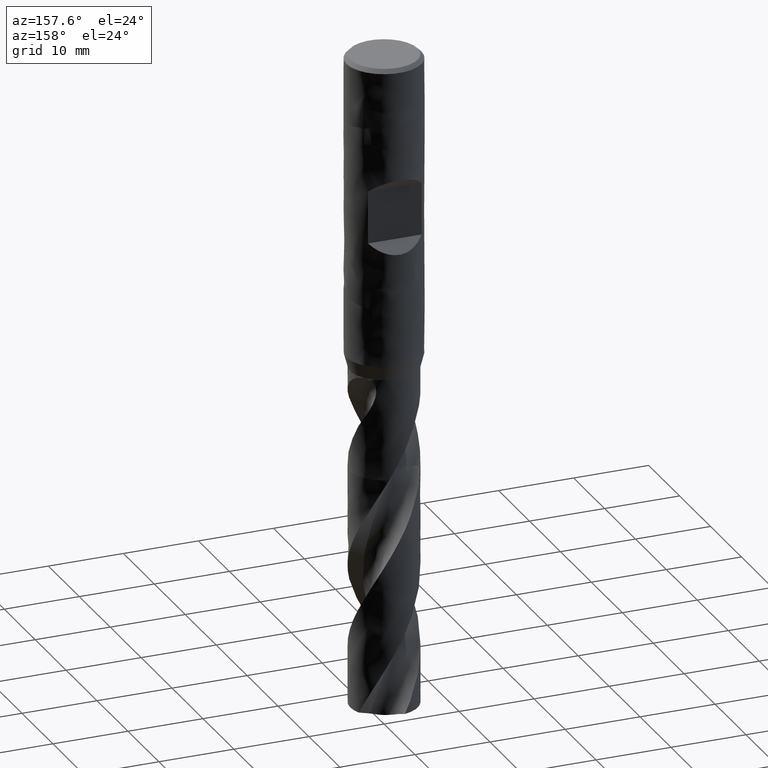
[diagram: clean part render]
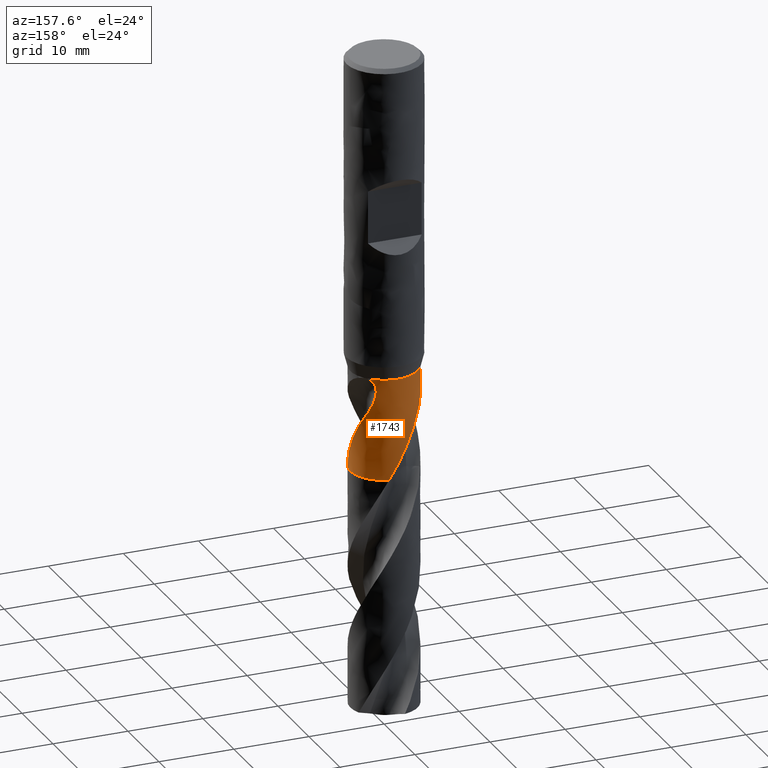
[diagram: same view with one face highlighted and labeled with its STEP entity id]
A machine part, auxiliary view. The second image highlights one B-rep face of the part: STEP entity #1743.
In plain terms, the highlighted face is a freeform B-spline surface patch.
Its self-contained STEP definition (entity closure, byte-faithful):
#119 = VERTEX_POINT('', #120);
#120 = CARTESIAN_POINT('', (3.44069391722672, 2.90028022231629, -42.));
#130 = EDGE_CURVE('', #131, #119, #133, .T.);
#131 = VERTEX_POINT('', #132);
#132 = CARTESIAN_POINT('', (-4.5, 2.8473038080176E-15, -42.));
#133 = CIRCLE('', #134, 4.5);
#134 = AXIS2_PLACEMENT_3D('', #135, #136, #137);
#135 = CARTESIAN_POINT('', (1.57474777179495E-31, 2.57175827820944E-15, -42.));
#136 = DIRECTION('', (3.74939945665464E-33, 6.12323399573677E-17, -1.));
#137 = DIRECTION('', (-1., 6.12323399573677E-17, 0.));
#705 = VERTEX_POINT('', #706);
#706 = CARTESIAN_POINT('', (4.05198058906234, -1.95740984616458, -55.5));
#713 = EDGE_CURVE('', #714, #705, #716, .T.);
#714 = VERTEX_POINT('', #715);
#715 = CARTESIAN_POINT('', (4.45194043634564, 0.655916420918671, -50.7856573626947));
#716 = B_SPLINE_CURVE_WITH_KNOTS('', 3, (#717, #718, #719, #720, #721, #722, #723, #724, #725, #726, #727, #728, #729, #730, #731, #732, #733, #734, #735, #736, #737, #738, #739, #740, #741, #742, #743, #744, #745, #746, #747, #748, #749, #750, #751, #752, #753, #754, #755, #756, #757, #758, #759), .UNSPECIFIED., .F., .U., (4, 3, 3, 3, 3, 3, 3, 3, 3, 3, 3, 3, 3, 3, 4), (0., 0.29539502065758, 0.959313315075301, 1.25466339993672, 1.34222183184912, 1.40060716105512, 2.06667801189992, 2.26381900321986, 2.70763022151414, 3.15144409276816, 3.59519686790093, 4.03891317137523, 4.48260627573187, 5.14828045298989, 5.42449532292791), .UNSPECIFIED.);
#717 = CARTESIAN_POINT('', (4.45194043634564, 0.655916420918671, -50.7856573626947));
#718 = CARTESIAN_POINT('', (4.458782371068, 0.60947775147564, -50.8722136766796));
#719 = CARTESIAN_POINT('', (4.46491948193014, 0.562784455645434, -50.9586924824124));
#720 = CARTESIAN_POINT('', (4.4703356008188, 0.515848442909386, -51.0450813355455));
#721 = CARTESIAN_POINT('', (4.48250865778815, 0.410356896528149, -51.239245542854));
#722 = CARTESIAN_POINT('', (4.49103893057927, 0.303598287924393, -51.432989835455));
#723 = CARTESIAN_POINT('', (4.49573017685656, 0.195985144593489, -51.626312862186));
#724 = CARTESIAN_POINT('', (4.49781712038222, 0.148112460134836, -51.7123143669355));
#725 = CARTESIAN_POINT('', (4.49914532433545, 0.100066112688452, -51.7982412225091));
#726 = CARTESIAN_POINT('', (4.49970089075721, 0.0518834628647062, -51.8840930231405));
#727 = CARTESIAN_POINT('', (4.49986559199552, 0.0375994064848651, -51.9095443415095));
#728 = CARTESIAN_POINT('', (4.49996240674706, 0.0233031983495538, -51.9349893738715));
#729 = CARTESIAN_POINT('', (4.49999100829995, 0.00899584457522997, -51.9604281201026));
#730 = CARTESIAN_POINT('', (4.50001008026189, -0.000544522262498801, -51.9773910731941));
#731 = CARTESIAN_POINT('', (4.49999882216196, -0.0100898749564475, -51.9943512843733));
#732 = CARTESIAN_POINT('', (4.49995714131476, -0.0196399167576835, -52.011308751903));
#733 = CARTESIAN_POINT('', (4.49948163834621, -0.128588595383942, -52.2047627407616));
#734 = CARTESIAN_POINT('', (4.49504186639338, -0.238164718926902, -52.3978967519229));
#735 = CARTESIAN_POINT('', (4.48652822079618, -0.347943276985622, -52.5906937241813));
#736 = CARTESIAN_POINT('', (4.48400838596081, -0.380435096337753, -52.647757002339));
#737 = CARTESIAN_POINT('', (4.48113185975063, -0.412947158005838, -52.7047941378285));
#738 = CARTESIAN_POINT('', (4.47789659128198, -0.445468425127137, -52.7618045388907));
#739 = CARTESIAN_POINT('', (4.47061323315859, -0.518681525482067, -52.8901484991267));
#740 = CARTESIAN_POINT('', (4.46150848244016, -0.591953384753152, -53.0183685788104));
#741 = CARTESIAN_POINT('', (4.45058087248778, -0.6650788655837, -53.1465037765206));
#742 = CARTESIAN_POINT('', (4.43965319721369, -0.738204783534691, -53.2746397401816));
#743 = CARTESIAN_POINT('', (4.42689965127179, -0.81119505040798, -53.4027103661669));
#744 = CARTESIAN_POINT('', (4.41236403463797, -0.883766725914329, -53.5308029378081));
#745 = CARTESIAN_POINT('', (4.39783041900018, -0.956328411088755, -53.6588778760228));
#746 = CARTESIAN_POINT('', (4.38151935972037, -1.02846888724561, -53.7870026870114));
#747 = CARTESIAN_POINT('', (4.36345470242141, -1.10011956619107, -53.915141136748));
#748 = CARTESIAN_POINT('', (4.34539152984109, -1.17176435622891, -54.0432690548957));
#749 = CARTESIAN_POINT('', (4.32557253404574, -1.24293061463942, -54.1714299099022));
#750 = CARTESIAN_POINT('', (4.30401457343478, -1.31356710969063, -54.299577315078));
#751 = CARTESIAN_POINT('', (4.28245773995316, -1.38419991160651, -54.4277180202368));
#752 = CARTESIAN_POINT('', (4.25915525589905, -1.45432258408168, -54.5558591573024));
#753 = CARTESIAN_POINT('', (4.23413862129237, -1.52383402497789, -54.6839843213895));
#754 = CARTESIAN_POINT('', (4.1966060847349, -1.62812226109032, -54.8762109130409));
#755 = CARTESIAN_POINT('', (4.15520351586181, -1.7310594862346, -55.0684583998427));
#756 = CARTESIAN_POINT('', (4.11007651128544, -1.83228575047113, -55.2606889565096));
#757 = CARTESIAN_POINT('', (4.09135151018791, -1.87428858063284, -55.3404531114398));
#758 = CARTESIAN_POINT('', (4.07198119407893, -1.91600714071914, -55.4202317381398));
#759 = CARTESIAN_POINT('', (4.05198058906234, -1.95740984616458, -55.5));
#762 = VERTEX_POINT('', #763);
#763 = CARTESIAN_POINT('', (4.12385104394005, 1.80106983967712, -48.6947415750099));
#772 = EDGE_CURVE('', #762, #119, #773, .T.);
#773 = B_SPLINE_CURVE_WITH_KNOTS('', 3, (#774, #775, #776, #777, #778, #779, #780, #781, #782, #783, #784, #785, #786, #787, #788, #789, #790, #791, #792, #793, #794, #795, #796, #797, #798, #799, #800, #801, #802, #803, #804, #805, #806, #807, #808, #809, #810, #811, #812, #813, #814, #815, #816, #817, #818, #819, #820, #821, #822, #823, #824, #825, #826, #827, #828, #829, #830, #831, #832, #833, #834, #835, #836, #837, #838, #839, #840, #841, #842, #843, #844, #845, #846, #847, #848, #849, #850, #851, #852, #853, #854, #855, #856, #857, #858, #859, #860, #861, #862, #863, #864, #865, #866, #867, #868, #869, #870, #871, #872, #873, #874, #875, #876, #877, #878, #879, #880, #881, #882), .UNSPECIFIED., .F., .U., (4, 3, 3, 3, 3, 3, 3, 3, 3, 3, 3, 3, 3, 3, 3, 3, 3, 3, 3, 3, 3, 3, 3, 3, 3, 3, 3, 3, 3, 3, 3, 3, 3, 3, 3, 3, 4), (0., 0.197102835893202, 0.492773784466257, 0.788351550341603, 1.08381636993702, 1.3791520201464, 1.67435693164855, 1.96942957314415, 2.26436904922048, 2.55916718057986, 2.85382937971017, 3.14836667456291, 3.44278902684676, 3.73711664324877, 4.03137973282777, 4.32561096089565, 4.61985731561041, 4.91418934823698, 5.20869833190772, 5.50351688054435, 5.79884051974259, 5.99604939918181, 6.19356024554242, 6.32531387054738, 6.45722165456509, 6.58930228822605, 6.72156958453462, 6.8540252972224, 6.98665129956758, 7.11940309426151, 7.25220950836681, 7.38498253623147, 7.51763558592297, 7.65010177584364, 7.78234361296874, 7.91435190113676, 7.96430875350277), .UNSPECIFIED.);
#774 = CARTESIAN_POINT('', (4.12385104394005, 1.80106983967712, -48.6947415750099));
#775 = CARTESIAN_POINT('', (4.10944174345662, 1.83406234642616, -48.6397826742657));
#776 = CARTESIAN_POINT('', (4.09454689651569, 1.86708620827442, -48.5849677086219));
#777 = CARTESIAN_POINT('', (4.07917594485883, 1.90008515885102, -48.5302738577882));
#778 = CARTESIAN_POINT('', (4.05611821544434, 1.94958637974763, -48.4482284489343));
#779 = CARTESIAN_POINT('', (4.03198536726886, 1.99903701407781, -48.366447812066));
#780 = CARTESIAN_POINT('', (4.00682741203289, 2.04825147142186, -48.2848482204819));
#781 = CARTESIAN_POINT('', (3.98167738549655, 2.09745041849706, -48.2032743455606));
#782 = CARTESIAN_POINT('', (3.95549993863972, 2.14641890998529, -48.1218716841581));
#783 = CARTESIAN_POINT('', (3.92836864345227, 2.19497603657557, -48.0405485289285));
#784 = CARTESIAN_POINT('', (3.90124771568488, 2.24351460849956, -47.9592564489315));
#785 = CARTESIAN_POINT('', (3.87317059186955, 2.29164746575904, -47.8780346241867));
#786 = CARTESIAN_POINT('', (3.84423492364582, 2.33920025902484, -47.7967856308718));
#787 = CARTESIAN_POINT('', (3.81531190532911, 2.38673226347009, -47.7155721574628));
#788 = CARTESIAN_POINT('', (3.78552813446016, 2.43368940899767, -47.6343220292485));
#789 = CARTESIAN_POINT('', (3.75500652918405, 2.47990442674471, -47.5529336735439));
#790 = CARTESIAN_POINT('', (3.72449843516272, 2.52609898610256, -47.4715813467048));
#791 = CARTESIAN_POINT('', (3.69324978738854, 2.57155741635926, -47.3900814771553));
#792 = CARTESIAN_POINT('', (3.66139905924397, 2.61613396617384, -47.3083419853504));
#793 = CARTESIAN_POINT('', (3.62956260218995, 2.66069054294492, -47.2266391178791));
#794 = CARTESIAN_POINT('', (3.59712066293459, 2.70437172633962, -47.1446868116561));
#795 = CARTESIAN_POINT('', (3.56422679716252, 2.74705066178054, -47.0624024926849));
#796 = CARTESIAN_POINT('', (3.53134777629578, 2.78971033634284, -46.980155308386));
#797 = CARTESIAN_POINT('', (3.4980116015033, 2.83137596284773, -46.8975663306031));
#798 = CARTESIAN_POINT('', (3.46439192168034, 2.87193116439027, -46.8145574760846));
#799 = CARTESIAN_POINT('', (3.43078835351592, 2.91246693054369, -46.7315884021449));
#800 = CARTESIAN_POINT('', (3.39689754157662, 2.95189818134495, -46.6481857348355));
#801 = CARTESIAN_POINT('', (3.3629133691534, 2.99011934069014, -46.5642784385826));
#802 = CARTESIAN_POINT('', (3.32894486692555, 3.02832287615365, -46.4804098322148));
#803 = CARTESIAN_POINT('', (3.29487685640257, 3.06532454623205, -46.3960221168194));
#804 = CARTESIAN_POINT('', (3.26092022794701, 3.10103196806579, -46.311056007049));
#805 = CARTESIAN_POINT('', (3.22697799335723, 3.13672425389042, -46.2261259135393));
#806 = CARTESIAN_POINT('', (3.19313949085429, 3.17113136009745, -46.1406002333629));
#807 = CARTESIAN_POINT('', (3.15963654930072, 3.20416867164059, -46.0544304921937));
#808 = CARTESIAN_POINT('', (3.12614668220065, 3.23719309044137, -45.9682943785874));
#809 = CARTESIAN_POINT('', (3.09298461423683, 3.26885619546727, -45.8814921255085));
#810 = CARTESIAN_POINT('', (3.06040656195672, 3.29907739762686, -45.7939880515898));
#811 = CARTESIAN_POINT('', (3.0278389922724, 3.32928887555113, -45.7065121337385));
#812 = CARTESIAN_POINT('', (2.99584479393179, 3.35806902033853, -45.6183082485744));
#813 = CARTESIAN_POINT('', (2.96470315573492, 3.3853412233297, -45.5293597156362));
#814 = CARTESIAN_POINT('', (2.93356834486537, 3.41260744730797, -45.4404306833019));
#815 = CARTESIAN_POINT('', (2.903273499296, 3.43837717554736, -45.3507241197067));
#816 = CARTESIAN_POINT('', (2.87412922420207, 3.46256858453196, -45.2602443807016));
#817 = CARTESIAN_POINT('', (2.84498810472187, 3.48675737417735, -45.169774438444));
#818 = CARTESIAN_POINT('', (2.81698432614287, 3.50937905730848, -45.0784883752135));
#819 = CARTESIAN_POINT('', (2.79047197841208, 3.53033513107425, -44.9864174719309));
#820 = CARTESIAN_POINT('', (2.76395826766171, 3.5512922822074, -44.8943418352145));
#821 = CARTESIAN_POINT('', (2.7389195502569, 3.57059707896348, -44.801426298283));
#822 = CARTESIAN_POINT('', (2.71575755654577, 3.58812777003057, -44.7077443958891));
#823 = CARTESIAN_POINT('', (2.6925888185837, 3.6056635656401, -44.6140352154351));
#824 = CARTESIAN_POINT('', (2.67127879425492, 3.62143916826633, -44.5194861438142));
#825 = CARTESIAN_POINT('', (2.6522980202464, 3.63528750056953, -44.4242303883018));
#826 = CARTESIAN_POINT('', (2.63330583508514, 3.64914415842547, -44.3289173654737));
#827 = CARTESIAN_POINT('', (2.61662603702717, 3.66108654722025, -44.2327967112601));
#828 = CARTESIAN_POINT('', (2.60281781508818, 3.67087720054207, -44.1360973912047));
#829 = CARTESIAN_POINT('', (2.58899507901893, 3.68067814503812, -44.0392964283358));
#830 = CARTESIAN_POINT('', (2.5780290796607, 3.68833947824353, -43.9417752063882));
#831 = CARTESIAN_POINT('', (2.57059467444784, 3.69351364146668, -43.8439206683643));
#832 = CARTESIAN_POINT('', (2.56314753242476, 3.69869666919655, -43.7458984834817));
#833 = CARTESIAN_POINT('', (2.55922938610776, 3.70139773973256, -43.6473366686923));
#834 = CARTESIAN_POINT('', (2.55966336060007, 3.70109760481963, -43.5488968697536));
#835 = CARTESIAN_POINT('', (2.55995315664744, 3.70089718310594, -43.4831615209219));
#836 = CARTESIAN_POINT('', (2.56218671127093, 3.69935516549302, -43.4173831179439));
#837 = CARTESIAN_POINT('', (2.56663922142728, 3.69626339795085, -43.3518707041325));
#838 = CARTESIAN_POINT('', (2.57109854928265, 3.69316689628348, -43.2862579774854));
#839 = CARTESIAN_POINT('', (2.5777933340623, 3.68851032435602, -43.2207952890536));
#840 = CARTESIAN_POINT('', (2.58701017784377, 3.68203453809613, -43.1559291360261));
#841 = CARTESIAN_POINT('', (2.59315846084538, 3.67771473323367, -43.1126588500697));
#842 = CARTESIAN_POINT('', (2.6004366305666, 3.67257918365187, -43.0696025814014));
#843 = CARTESIAN_POINT('', (2.60892488334374, 3.66653937017912, -43.0269381938789));
#844 = CARTESIAN_POINT('', (2.61742306784509, 3.66049248979127, -42.9842238866684));
#845 = CARTESIAN_POINT('', (2.62714582980874, 3.65353111877221, -42.9418477784331));
#846 = CARTESIAN_POINT('', (2.63816015507598, 3.64556045021469, -42.90003331892));
#847 = CARTESIAN_POINT('', (2.64918891332158, 3.63757933703309, -42.8581640664736));
#848 = CARTESIAN_POINT('', (2.66153106225893, 3.62857306834648, -42.8167925497633));
#849 = CARTESIAN_POINT('', (2.67522692407668, 3.61844730577844, -42.7761938025171));
#850 = CARTESIAN_POINT('', (2.68894214153923, 3.60830723300005, -42.735537679186));
#851 = CARTESIAN_POINT('', (2.70404257664039, 3.59702402337951, -42.6955796070558));
#852 = CARTESIAN_POINT('', (2.72052347810708, 3.58451558862117, -42.6566467471936));
#853 = CARTESIAN_POINT('', (2.73702785681922, 3.57198933544474, -42.617658426997));
#854 = CARTESIAN_POINT('', (2.75495605165357, 3.5582041566712, -42.5796103987791));
#855 = CARTESIAN_POINT('', (2.77423693388748, 3.54310731345448, -42.5428718148075));
#856 = CARTESIAN_POINT('', (2.7935426042922, 3.5279910612126, -42.5060859984383));
#857 = CARTESIAN_POINT('', (2.8142573850786, 3.51151762363255, -42.4705167813898));
#858 = CARTESIAN_POINT('', (2.83622548821922, 3.49368358326504, -42.4365498014514));
#859 = CARTESIAN_POINT('', (2.8582144275401, 3.47583262776938, -42.402550604707));
#860 = CARTESIAN_POINT('', (2.88152563888081, 3.45656333933347, -42.370056901602));
#861 = CARTESIAN_POINT('', (2.90591271940851, 3.4359381931548, -42.3394302940152));
#862 = CARTESIAN_POINT('', (2.930309833759, 3.41530456096398, -42.3087910854141));
#863 = CARTESIAN_POINT('', (2.9558616272231, 3.39324672055347, -42.2799235903449));
#864 = CARTESIAN_POINT('', (2.98224538445104, 3.3698979905808, -42.2531194631827));
#865 = CARTESIAN_POINT('', (3.00862250905906, 3.34655513025172, -42.2263220743174));
#866 = CARTESIAN_POINT('', (3.03591594956172, 3.32184581133799, -42.2014996300607));
#867 = CARTESIAN_POINT('', (3.06376054121671, 3.29596288602944, -42.178839206985));
#868 = CARTESIAN_POINT('', (3.09157997156225, 3.27010334940265, -42.1561992606297));
#869 = CARTESIAN_POINT('', (3.12003544760285, 3.24299176277464, -42.1356447896155));
#870 = CARTESIAN_POINT('', (3.14876129791478, 3.21485649582591, -42.1172481652552));
#871 = CARTESIAN_POINT('', (3.17744668397943, 3.18676086120788, -42.0988774550298));
#872 = CARTESIAN_POINT('', (3.20648317988398, 3.1575644916313, -42.0826031261672));
#873 = CARTESIAN_POINT('', (3.23553971957338, 3.12750423230138, -42.0683975863059));
#874 = CARTESIAN_POINT('', (3.26454704734, 3.09749488485486, -42.0542161058108));
#875 = CARTESIAN_POINT('', (3.29364739903772, 3.06654939313026, -42.0420578285831));
#876 = CARTESIAN_POINT('', (3.32256399262148, 3.03489184567345, -42.0318240271443));
#877 = CARTESIAN_POINT('', (3.35142951734217, 3.00329020780889, -42.0216082993628));
#878 = CARTESIAN_POINT('', (3.38017450223144, 2.97091121233099, -42.0132859133681));
#879 = CARTESIAN_POINT('', (3.40858108249613, 2.93795422089112, -42.0067173488274));
#880 = CARTESIAN_POINT('', (3.41933119035829, 2.92548206797831, -42.0042315593851));
#881 = CARTESIAN_POINT('', (3.43003872500741, 2.91292081296467, -42.0019952226215));
#882 = CARTESIAN_POINT('', (3.44069391722673, 2.90028022231629, -42.));
#1045 = EDGE_CURVE('', #762, #714, #1046, .T.);
#1046 = B_SPLINE_CURVE_WITH_KNOTS('', 3, (#1047, #1048, #1049, #1050, #1051, #1052, #1053, #1054, #1055, #1056, #1057, #1058, #1059, #1060, #1061, #1062, #1063, #1064, #1065, #1066, #1067, #1068, #1069, #1070, #1071, #1072, #1073, #1074, #1075, #1076, #1077, #1078, #1079, #1080), .UNSPECIFIED., .F., .U., (4, 3, 3, 3, 3, 3, 3, 3, 3, 3, 3, 4), (0., 0.295439691773837, 0.590954220280572, 0.787983847565851, 0.87555585662526, 1.07256570003713, 1.26954016174877, 1.46650024332262, 1.66346796548772, 1.7948097205204, 2.23788693835516, 2.40915931169227), .UNSPECIFIED.);
#1047 = CARTESIAN_POINT('', (4.12385104394005, 1.80106983967712, -48.6947415750099));
#1048 = CARTESIAN_POINT('', (4.14544930899904, 1.75161699451328, -48.7771200990048));
#1049 = CARTESIAN_POINT('', (4.16589055044593, 1.70238668048791, -48.8599450351426));
#1050 = CARTESIAN_POINT('', (4.18521003168944, 1.65348631401867, -48.9432144891314));
#1051 = CARTESIAN_POINT('', (4.20453440667911, 1.60457356077891, -49.0265050357968));
#1052 = CARTESIAN_POINT('', (4.22273952415076, 1.55598233144152, -49.1102537071801));
#1053 = CARTESIAN_POINT('', (4.23985833506833, 1.50784657659627, -49.1944742479068));
#1054 = CARTESIAN_POINT('', (4.25127203087441, 1.47575282511751, -49.2506269583438));
#1055 = CARTESIAN_POINT('', (4.26220384567453, 1.44385913063201, -49.3069949328159));
#1056 = CARTESIAN_POINT('', (4.27266327852273, 1.41221404481172, -49.3635864254033));
#1057 = CARTESIAN_POINT('', (4.27731208977391, 1.3981490344865, -49.388739143651));
#1058 = CARTESIAN_POINT('', (4.28186755264805, 1.38413335881177, -49.4139369652219));
#1059 = CARTESIAN_POINT('', (4.28633103197485, 1.37017016619449, -49.4391798216565));
#1060 = CARTESIAN_POINT('', (4.29637247527037, 1.33875731612278, -49.4959684148024));
#1061 = CARTESIAN_POINT('', (4.30594987720016, 1.30760659614793, -49.552986506774));
#1062 = CARTESIAN_POINT('', (4.31509639359055, 1.2766922550176, -49.6101982782461));
#1063 = CARTESIAN_POINT('', (4.32424126732544, 1.24578346590403, -49.6673997748522));
#1064 = CARTESIAN_POINT('', (4.33295615235127, 1.21510915431608, -49.7247985164359));
#1065 = CARTESIAN_POINT('', (4.34127774492715, 1.18461282341544, -49.7823460452505));
#1066 = CARTESIAN_POINT('', (4.34959872998443, 1.1541187189021, -49.8398893728027));
#1067 = CARTESIAN_POINT('', (4.35752708512729, 1.12380108626086, -49.8975841916973));
#1068 = CARTESIAN_POINT('', (4.36510037109096, 1.09357155701014, -49.9553698702792));
#1069 = CARTESIAN_POINT('', (4.37267395084199, 1.06334085507777, -50.0131577905171));
#1070 = CARTESIAN_POINT('', (4.37989292459683, 1.03319704375896, -50.0710384762165));
#1071 = CARTESIAN_POINT('', (4.38679241902818, 1.0030215712321, -50.1289395643701));
#1072 = CARTESIAN_POINT('', (4.39139313074627, 0.982900002697661, -50.1675490911128));
#1073 = CARTESIAN_POINT('', (4.39585183258811, 0.962763280368107, -50.2061679054679));
#1074 = CARTESIAN_POINT('', (4.40017741408164, 0.942570275685479, -50.2447719406265));
#1075 = CARTESIAN_POINT('', (4.41476962516635, 0.874449819001488, -50.3750014208936));
#1076 = CARTESIAN_POINT('', (4.42783841378979, 0.805713948395505, -50.5050903682347));
#1077 = CARTESIAN_POINT('', (4.43932713893653, 0.736460829577258, -50.6350328997717));
#1078 = CARTESIAN_POINT('', (4.4437681283246, 0.709690899769174, -50.6852624418875));
#1079 = CARTESIAN_POINT('', (4.44797342838624, 0.682841929386687, -50.7354713260767));
#1080 = CARTESIAN_POINT('', (4.45194043634564, 0.655916420918671, -50.7856573626947));
#1100 = VERTEX_POINT('', #1101);
#1101 = CARTESIAN_POINT('', (-4.5, 2.92789061816025E-15, -43.3160824851502));
#1142 = EDGE_CURVE('', #131, #1100, #1143, .T.);
#1143 = LINE('', #1144, #1145);
#1144 = CARTESIAN_POINT('', (-4.5, 2.8473038080176E-15, -42.));
#1145 = VECTOR('', #1146, 1.31608248515022);
#1146 = DIRECTION('', (-8.88178419700125E-16, 8.05868101426554E-17, -1.31608248515022));
#1410 = EDGE_CURVE('', #1411, #1100, #1413, .T.);
#1411 = VERTEX_POINT('', #1412);
#1412 = CARTESIAN_POINT('', (-4.29539669869406, 1.34147948208244, -44.6514118858238));
#1413 = B_SPLINE_CURVE_WITH_KNOTS('', 3, (#1414, #1415, #1416, #1417, #1418, #1419, #1420, #1421, #1422, #1423, #1424, #1425, #1426, #1427, #1428, #1429), .UNSPECIFIED., .F., .U., (4, 3, 3, 3, 3, 4), (0., 0.447380350143242, 0.894897015395336, 1.3424632426885, 1.78998473153669, 1.91006643244903), .UNSPECIFIED.);
#1414 = CARTESIAN_POINT('', (-4.29539669869406, 1.34147948208244, -44.6514118858238));
#1415 = CARTESIAN_POINT('', (-4.32408506816386, 1.24961976364665, -44.5374927605302));
#1416 = CARTESIAN_POINT('', (-4.35057512189034, 1.15443300244147, -44.4256059738919));
#1417 = CARTESIAN_POINT('', (-4.37430159509922, 1.05616549608117, -44.3159731814237));
#1418 = CARTESIAN_POINT('', (-4.39803529767519, 0.957868047981543, -44.2063069842562));
#1419 = CARTESIAN_POINT('', (-4.41902552932334, 0.856394272690701, -44.0987818685925));
#1420 = CARTESIAN_POINT('', (-4.43671063472103, 0.752062991878544, -43.9936411408358));
#1421 = CARTESIAN_POINT('', (-4.45439769872717, 0.647720156477193, -43.8884887688445));
#1422 = CARTESIAN_POINT('', (-4.46879832793187, 0.540402390431017, -43.7856030435393));
#1423 = CARTESIAN_POINT('', (-4.47936178043881, 0.430485818516779, -43.6852833467799));
#1424 = CARTESIAN_POINT('', (-4.48992417702953, 0.320580233795508, -43.5849736779156));
#1425 = CARTESIAN_POINT('', (-4.4966627626958, 0.207934492413165, -43.4871052190702));
#1426 = CARTESIAN_POINT('', (-4.49903864304257, 0.0930123024641156, -43.392025900119));
#1427 = CARTESIAN_POINT('', (-4.49967615377739, 0.0621756781107885, -43.3665136361814));
#1428 = CARTESIAN_POINT('', (-4.5, 0.0311683335366803, -43.3411965134454));
#1429 = CARTESIAN_POINT('', (-4.5, 3.64097038700397E-15, -43.3160824851502));
#1551 = VERTEX_POINT('', #1552);
#1552 = CARTESIAN_POINT('', (1.11183896799399, 4.3604832426292, -55.5));
#1559 = EDGE_CURVE('', #1411, #1551, #1560, .T.);
#1560 = B_SPLINE_CURVE_WITH_KNOTS('', 3, (#1561, #1562, #1563, #1564, #1565, #1566, #1567, #1568, #1569, #1570, #1571, #1572, #1573, #1574, #1575, #1576, #1577, #1578, #1579, #1580, #1581, #1582, #1583, #1584, #1585, #1586, #1587, #1588, #1589, #1590, #1591, #1592, #1593, #1594, #1595, #1596, #1597, #1598, #1599, #1600, #1601, #1602, #1603, #1604, #1605, #1606, #1607, #1608, #1609, #1610, #1611, #1612, #1613, #1614, #1615, #1616, #1617, #1618, #1619, #1620, #1621, #1622, #1623, #1624, #1625, #1626, #1627, #1628, #1629, #1630, #1631, #1632, #1633, #1634, #1635, #1636, #1637, #1638, #1639, #1640, #1641, #1642, #1643, #1644, #1645, #1646, #1647, #1648, #1649, #1650, #1651, #1652, #1653, #1654, #1655, #1656, #1657, #1658, #1659, #1660, #1661, #1662, #1663, #1664, #1665, #1666, #1667, #1668, #1669), .UNSPECIFIED., .F., .U., (4, 3, 3, 3, 3, 3, 3, 3, 3, 3, 3, 3, 3, 3, 3, 3, 3, 3, 3, 3, 3, 3, 3, 3, 3, 3, 3, 3, 3, 3, 3, 3, 3, 3, 3, 3, 4), (0., 0.442316919703613, 0.884663411420732, 1.17981335267309, 1.47498446681071, 1.77017817358961, 2.21274049600664, 2.50800136069737, 2.80329240951882, 3.09861383894044, 3.39397508685775, 3.68937601381761, 3.9848130476933, 4.64955487547151, 4.94504723879927, 5.24058594565356, 5.53618187669096, 5.8318077239107, 6.02885477657869, 6.22586025083169, 6.42284567200577, 6.61983339189687, 6.81684562731948, 7.26003274004493, 7.70307422773445, 8.14605008551359, 8.58901752051185, 9.03195736241555, 9.47484739424819, 9.67180070334426, 10.114654115417, 10.5575013692184, 10.6158817940916, 11.2821115342085, 11.5779058537086, 12.2439721220954, 12.8428846972362), .UNSPECIFIED.);
#1561 = CARTESIAN_POINT('', (-4.29539669869406, 1.34147948208244, -44.6514118858238));
#1562 = CARTESIAN_POINT('', (-4.26703302288412, 1.43229953640613, -44.7640416796425));
#1563 = CARTESIAN_POINT('', (-4.23598446240087, 1.5215878332831, -44.877272118116));
#1564 = CARTESIAN_POINT('', (-4.20245100871911, 1.60916298718193, -44.9910453607182));
#1565 = CARTESIAN_POINT('', (-4.16891531308887, 1.696743996099, -45.1048262098661));
#1566 = CARTESIAN_POINT('', (-4.13287982148164, 1.78264919245886, -45.2191994039562));
#1567 = CARTESIAN_POINT('', (-4.09455913170755, 1.86670445356265, -45.3341228369591));
#1568 = CARTESIAN_POINT('', (-4.06899015004418, 1.92278923289577, -45.4108040023678));
#1569 = CARTESIAN_POINT('', (-4.0423978278864, 1.97806503375079, -45.4877467244849));
#1570 = CARTESIAN_POINT('', (-4.01484450553339, 2.03249196711535, -45.5649335094706));
#1571 = CARTESIAN_POINT('', (-3.98728920661439, 2.08692280485207, -45.6421258315298));
#1572 = CARTESIAN_POINT('', (-3.95876787544659, 2.1405142816223, -45.7195757961143));
#1573 = CARTESIAN_POINT('', (-3.92934472401294, 2.19322822338937, -45.7972686766326));
#1574 = CARTESIAN_POINT('', (-3.89991932050694, 2.24594619992515, -45.8749675038282));
#1575 = CARTESIAN_POINT('', (-3.86958690097149, 2.29779550232364, -45.9529224163218));
#1576 = CARTESIAN_POINT('', (-3.83841444450393, 2.34873892806835, -46.0311221126145));
#1577 = CARTESIAN_POINT('', (-3.79167986170992, 2.42511467826802, -46.1483611946438));
#1578 = CARTESIAN_POINT('', (-3.74304534327969, 2.49947247374776, -46.2661897243262));
#1579 = CARTESIAN_POINT('', (-3.69273093785549, 2.57171892332837, -46.3845590190456));
#1580 = CARTESIAN_POINT('', (-3.65916306707333, 2.61991902553659, -46.4635305413406));
#1581 = CARTESIAN_POINT('', (-3.62484074910354, 2.66718962705235, -46.5427578155728));
#1582 = CARTESIAN_POINT('', (-3.58983048937862, 2.71350641376203, -46.6222285027361));
#1583 = CARTESIAN_POINT('', (-3.5548166506008, 2.75982793537603, -46.7017073140835));
#1584 = CARTESIAN_POINT('', (-3.51910943720358, 2.80520239251453, -46.7814413729313));
#1585 = CARTESIAN_POINT('', (-3.4827780396774, 2.84960648622592, -46.8614216188627));
#1586 = CARTESIAN_POINT('', (-3.44644290424699, 2.89401514838943, -46.9414100934481));
#1587 = CARTESIAN_POINT('', (-3.40947978399968, 2.93745790307386, -47.0216579124377));
#1588 = CARTESIAN_POINT('', (-3.37195357508556, 2.97992098678266, -47.1021513753703));
#1589 = CARTESIAN_POINT('', (-3.33442230647364, 3.02238979583324, -47.1826556913203));
#1590 = CARTESIAN_POINT('', (-3.29632196275392, 3.06388530587751, -47.2634160985385));
#1591 = CARTESIAN_POINT('', (-3.25771626373282, 3.10439764608382, -47.3444191296328));
#1592 = CARTESIAN_POINT('', (-3.21910537839433, 3.14491542874707, -47.4254330427326));
#1593 = CARTESIAN_POINT('', (-3.17998379092743, 3.1844551921768, -47.5067002908115));
#1594 = CARTESIAN_POINT('', (-3.14041748197054, 3.22300760764444, -47.588210803946));
#1595 = CARTESIAN_POINT('', (-3.10084633681559, 3.26156473538172, -47.6697312801272));
#1596 = CARTESIAN_POINT('', (-3.0608254662314, 3.29913898250182, -47.7515056159124));
#1597 = CARTESIAN_POINT('', (-3.0204240592769, 3.33572158642495, -47.8335272903121));
#1598 = CARTESIAN_POINT('', (-2.92951973102994, 3.41803349796065, -48.0180784179842));
#1599 = CARTESIAN_POINT('', (-2.83665040461999, 3.49535386325523, -48.2039630996826));
#1600 = CARTESIAN_POINT('', (-2.74256138533987, 3.56768230755524, -48.3910828981963));
#1601 = CARTESIAN_POINT('', (-2.70073674679831, 3.59983389189809, -48.4742617643029));
#1602 = CARTESIAN_POINT('', (-2.65866354916189, 3.6310062301845, -48.5577004100712));
#1603 = CARTESIAN_POINT('', (-2.61640235821721, 3.66120727355276, -48.6413881466344));
#1604 = CARTESIAN_POINT('', (-2.57413453924125, 3.69141305349979, -48.7250890083586));
#1605 = CARTESIAN_POINT('', (-2.53167048049944, 3.72065321466811, -48.8090451057766));
#1606 = CARTESIAN_POINT('', (-2.48906203530184, 3.7489425421603, -48.8932414611873));
#1607 = CARTESIAN_POINT('', (-2.44644533997181, 3.77723734722148, -48.9774541192601));
#1608 = CARTESIAN_POINT('', (-2.40367937469677, 3.80458385219289, -49.0619155363511));
#1609 = CARTESIAN_POINT('', (-2.36083431713313, 3.83098699123958, -49.1466251921457));
#1610 = CARTESIAN_POINT('', (-2.31798492337802, 3.85739280245135, -49.2313434210945));
#1611 = CARTESIAN_POINT('', (-2.27505168108672, 3.88285761557549, -49.3163182382829));
#1612 = CARTESIAN_POINT('', (-2.23213053143173, 3.90737677869064, -49.4015655331349));
#1613 = CARTESIAN_POINT('', (-2.20352178116115, 3.92371983147565, -49.4583864381961));
#1614 = CARTESIAN_POINT('', (-2.17492043288559, 3.93964196099857, -49.5153337450176));
#1615 = CARTESIAN_POINT('', (-2.14633623603313, 3.95515369636771, -49.5723995051062));
#1616 = CARTESIAN_POINT('', (-2.1177580706619, 3.97066215864364, -49.6294532238887));
#1617 = CARTESIAN_POINT('', (-2.08919598984206, 3.98576117404228, -49.6866277017202));
#1618 = CARTESIAN_POINT('', (-2.06063699857144, 4.00047186718248, -49.7439018694576));
#1619 = CARTESIAN_POINT('', (-2.03208091430484, 4.01518106292931, -49.801170207289));
#1620 = CARTESIAN_POINT('', (-2.00352695701577, 4.02950270930625, -49.8585403052117));
#1621 = CARTESIAN_POINT('', (-1.97493742309401, 4.04346660365371, -49.9159782814201));
#1622 = CARTESIAN_POINT('', (-1.94634755554731, 4.05743066095252, -49.9734169278997));
#1623 = CARTESIAN_POINT('', (-1.91772120518948, 4.07103759030878, -50.0309252053642));
#1624 = CARTESIAN_POINT('', (-1.88899537123002, 4.08432325942397, -50.0884568574479));
#1625 = CARTESIAN_POINT('', (-1.86026596228076, 4.09761058196831, -50.1459956694654));
#1626 = CARTESIAN_POINT('', (-1.8314343988039, 4.11057791684066, -50.203558338987));
#1627 = CARTESIAN_POINT('', (-1.80241900273627, 4.12326154137416, -50.2610898888278));
#1628 = CARTESIAN_POINT('', (-1.73714767793651, 4.1517938755403, -50.3905094723876));
#1629 = CARTESIAN_POINT('', (-1.67099240158538, 4.1788649174949, -50.5198167982899));
#1630 = CARTESIAN_POINT('', (-1.60408906283004, 4.20439035753212, -50.6490308212022));
#1631 = CARTESIAN_POINT('', (-1.53720770756843, 4.22990741026967, -50.7782023862086));
#1632 = CARTESIAN_POINT('', (-1.46957002223301, 4.25388450157392, -50.9072981764263));
#1633 = CARTESIAN_POINT('', (-1.40124605299674, 4.27627285132288, -51.0362947883646));
#1634 = CARTESIAN_POINT('', (-1.33293220492542, 4.29865788457569, -51.1652722914015));
#1635 = CARTESIAN_POINT('', (-1.26391377986457, 4.3194606774622, -51.2941631108594));
#1636 = CARTESIAN_POINT('', (-1.1942644690847, 4.33863254699933, -51.4229438577435));
#1637 = CARTESIAN_POINT('', (-1.1246164826228, 4.35780405200089, -51.5517221559794));
#1638 = CARTESIAN_POINT('', (-1.05432818150173, 4.37534706707061, -51.6804087188353));
#1639 = CARTESIAN_POINT('', (-0.983489254019049, 4.39121268981919, -51.8089869716103));
#1640 = CARTESIAN_POINT('', (-0.912654739197594, 4.40707732427474, -51.9375572150564));
#1641 = CARTESIAN_POINT('', (-0.841259141652817, 4.42126688629208, -52.0660373692451));
#1642 = CARTESIAN_POINT('', (-0.769409567440224, 4.43373532335112, -52.1944184401978));
#1643 = CARTESIAN_POINT('', (-0.69756807295327, 4.4462023582926, -52.3227850742684));
#1644 = CARTESIAN_POINT('', (-0.625262735416336, 4.45695035750219, -52.4510715957801));
#1645 = CARTESIAN_POINT('', (-0.552604986505963, 4.46594085595508, -52.5792692653916));
#1646 = CARTESIAN_POINT('', (-0.520294067201334, 4.46993893288942, -52.6362788014696));
#1647 = CARTESIAN_POINT('', (-0.48791200694902, 4.47358976100607, -52.6932734800191));
#1648 = CARTESIAN_POINT('', (-0.455468494529894, 4.47689048899911, -52.7502523447494));
#1649 = CARTESIAN_POINT('', (-0.382518614985472, 4.48431224119383, -52.8783704493785));
#1650 = CARTESIAN_POINT('', (-0.309242223894213, 4.48996441690554, -53.0064178839288));
#1651 = CARTESIAN_POINT('', (-0.235782286221555, 4.49381872281295, -53.1344014686108));
#1652 = CARTESIAN_POINT('', (-0.162323370074785, 4.49767297512279, -53.2623832735669));
#1653 = CARTESIAN_POINT('', (-0.0886702108230407, 4.49972863895086, -53.390320478117));
#1654 = CARTESIAN_POINT('', (-0.0150484078853025, 4.49997483830967, -53.5182664805565));
#1655 = CARTESIAN_POINT('', (-0.00534286698255091, 4.50000729469965, -53.5351335649047));
#1656 = CARTESIAN_POINT('', (0.00436206600224842, 4.50000834886925, -53.5520010887193));
#1657 = CARTESIAN_POINT('', (0.0140660132762335, 4.4999780163097, -53.568869093915));
#1658 = CARTESIAN_POINT('', (0.124806184908925, 4.49963186512434, -53.7613645535184));
#1659 = CARTESIAN_POINT('', (0.235437119924951, 4.49519748621446, -53.9539586342081));
#1660 = CARTESIAN_POINT('', (0.345704486119695, 4.48670128360221, -54.146538305761));
#1661 = CARTESIAN_POINT('', (0.3946612627129, 4.48292911865865, -54.2320403022444));
#1662 = CARTESIAN_POINT('', (0.443553087976091, 4.47835593161568, -54.317547926119));
#1663 = CARTESIAN_POINT('', (0.492362173052152, 4.47298328753276, -54.4030487712318));
#1664 = CARTESIAN_POINT('', (0.602269913048383, 4.46088522898409, -54.5955785971743));
#1665 = CARTESIAN_POINT('', (0.711779287959528, 4.44472749677441, -54.7881238698577));
#1666 = CARTESIAN_POINT('', (0.820524786026729, 4.42456089070046, -54.9806375910798));
#1667 = CARTESIAN_POINT('', (0.918306417335178, 4.40642750886016, -55.1537418210933));
#1668 = CARTESIAN_POINT('', (1.01549655610529, 4.38504869600859, -55.3268820645381));
#1669 = CARTESIAN_POINT('', (1.11183896799399, 4.3604832426292, -55.5));
#1743 = ADVANCED_FACE('', (#1744), #1760, .T.);
#1744 = FACE_OUTER_BOUND('', #1745, .T.);
#1745 = EDGE_LOOP('', (#1746, #1753, #1754, #1755, #1756, #1757, #1758, #1759));
#1746 = ORIENTED_EDGE('', *, *, #1747, .F.);
#1747 = EDGE_CURVE('', #1551, #705, #1748, .T.);
#1748 = CIRCLE('', #1749, 4.5);
#1749 = AXIS2_PLACEMENT_3D('', #1750, #1751, #1752);
#1750 = CARTESIAN_POINT('', (2.08091669844333E-31, 3.39839486763391E-15, -55.5));
#1751 = DIRECTION('', (3.74939945665464E-33, 6.12323399573677E-17, -1.));
#1752 = DIRECTION('', (-1., 6.12323399573677E-17, 0.));
#1753 = ORIENTED_EDGE('', *, *, #1559, .F.);
#1754 = ORIENTED_EDGE('', *, *, #1410, .T.);
#1755 = ORIENTED_EDGE('', *, *, #1142, .F.);
#1756 = ORIENTED_EDGE('', *, *, #130, .T.);
#1757 = ORIENTED_EDGE('', *, *, #772, .F.);
#1758 = ORIENTED_EDGE('', *, *, #1045, .T.);
#1759 = ORIENTED_EDGE('', *, *, #713, .T.);
#1760 = (
   BOUNDED_SURFACE ()
   B_SPLINE_SURFACE (2, 1, ((#1761, #1762), (#1763, #1764), (#1765, #1766), (#1767, #1768), (#1769, #1770), (#1771, #1772), (#1773, #1774), (#1775, #1776), (#1777, #1778)), .UNSPECIFIED., .T., .F., .U.)
   B_SPLINE_SURFACE_WITH_KNOTS ((3, 2, 2, 2, 3), (2, 2), (0., 7.06858347057704, 14.1371669411541, 21.2057504117311, 28.2743338823081), (0., 0.297605046890642), .UNSPECIFIED.)
   GEOMETRIC_REPRESENTATION_ITEM ()
   RATIONAL_B_SPLINE_SURFACE (((1., 1.), (0.707106781186548, 0.707106781186548), (1., 1.), (0.707106781186548, 0.707106781186548), (1., 1.), (0.707106781186548, 0.707106781186548), (1., 1.), (0.707106781186548, 0.707106781186548), (1., 1.)))
   REPRESENTATION_ITEM ('')
   SURFACE ()
);
#1761 = CARTESIAN_POINT('', (-4.5, 2.8473038080176E-15, -42.));
#1762 = CARTESIAN_POINT('', (-4.5, 3.67394039744206E-15, -55.5));
#1763 = CARTESIAN_POINT('', (-4.5, 4.5, -42.));
#1764 = CARTESIAN_POINT('', (-4.5, 4.5, -55.5));
#1765 = CARTESIAN_POINT('', (1.4791141972894E-31, 4.5, -42.));
#1766 = CARTESIAN_POINT('', (1.97215226305253E-31, 4.5, -55.5));
#1767 = CARTESIAN_POINT('', (4.5, 4.5, -42.));
#1768 = CARTESIAN_POINT('', (4.5, 4.5, -55.5));
#1769 = CARTESIAN_POINT('', (4.5, 2.8473038080176E-15, -42.));
#1770 = CARTESIAN_POINT('', (4.5, 3.67394039744206E-15, -55.5));
#1771 = CARTESIAN_POINT('', (4.5, -4.5, -42.));
#1772 = CARTESIAN_POINT('', (4.5, -4.5, -55.5));
#1773 = CARTESIAN_POINT('', (5.51091059616309E-16, -4.5, -42.));
#1774 = CARTESIAN_POINT('', (5.51091059616309E-16, -4.5, -55.5));
#1775 = CARTESIAN_POINT('', (-4.5, -4.5, -42.));
#1776 = CARTESIAN_POINT('', (-4.5, -4.5, -55.5));
#1777 = CARTESIAN_POINT('', (-4.5, 2.8473038080176E-15, -42.));
#1778 = CARTESIAN_POINT('', (-4.5, 3.67394039744206E-15, -55.5));